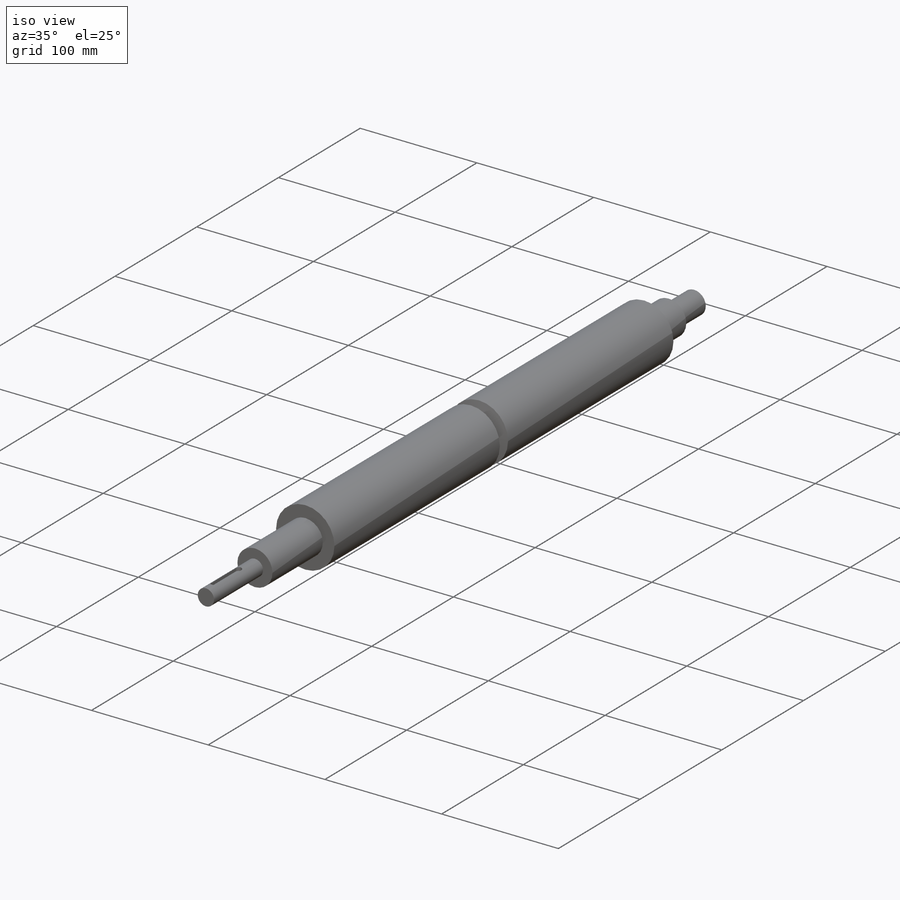
[diagram: iso view]
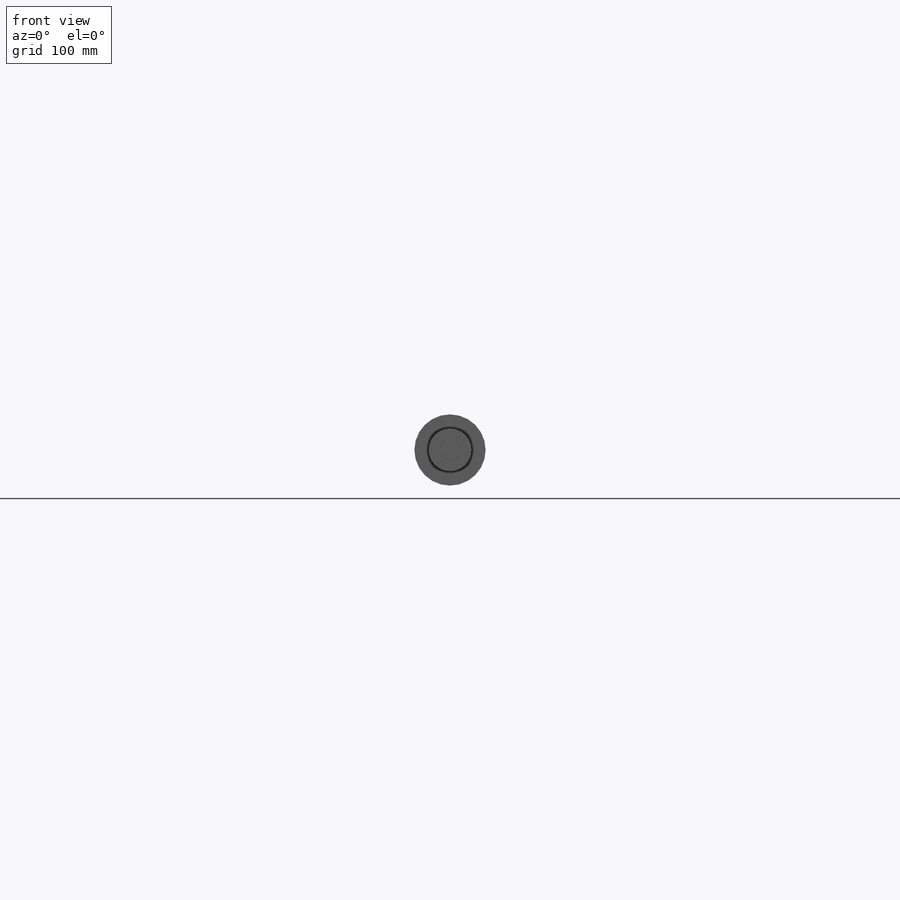
[diagram: front view]
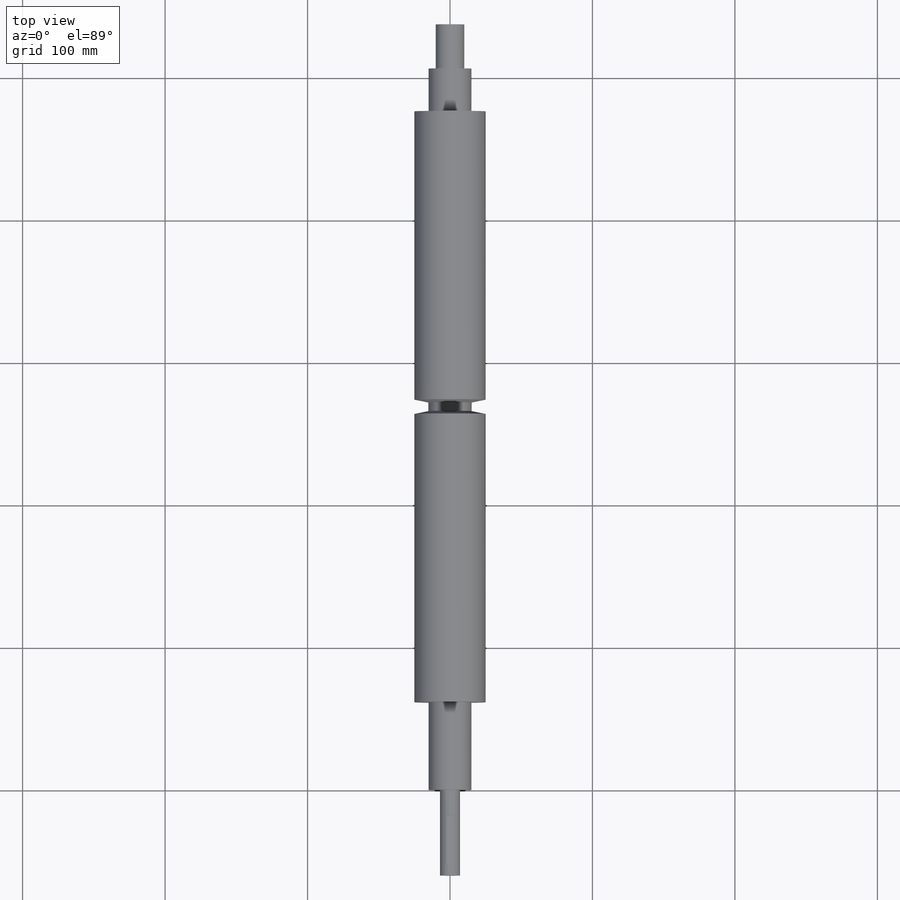
[diagram: top view]
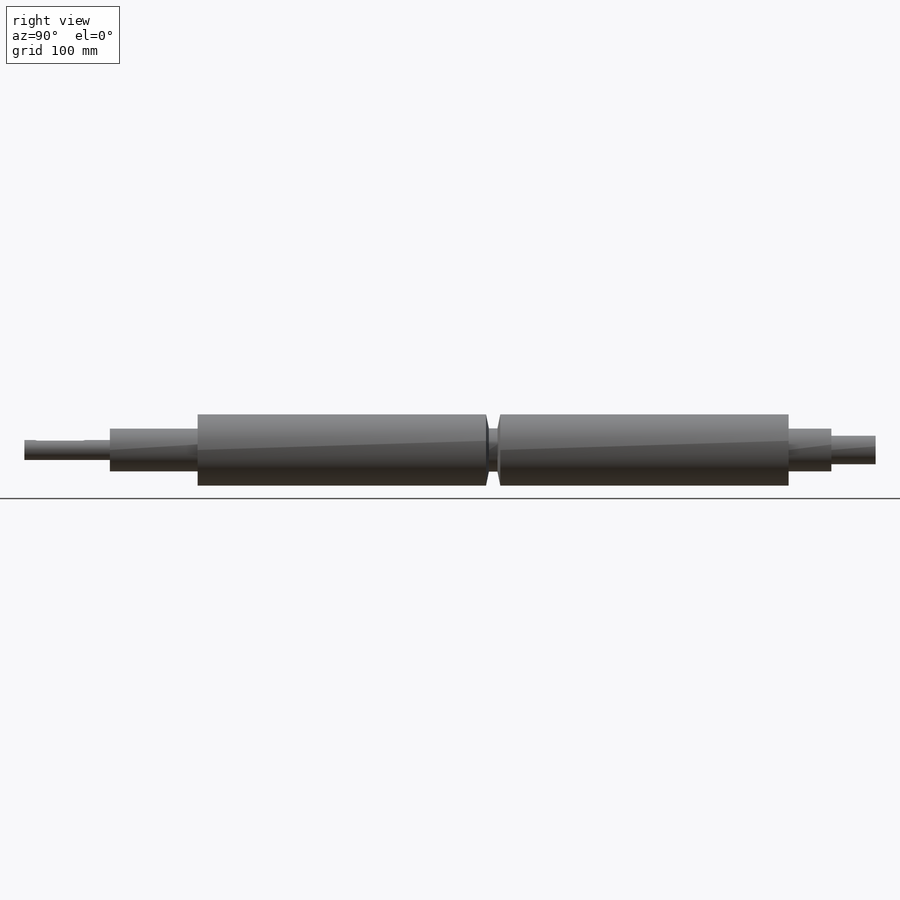
[diagram: right view]
SOLIDWORKS PART (.sldprt)
format: sldprt  version: not decoded by parser v0  size: 220,160 bytes
history: native  units: mm
features: sketch x7, plane x5, extrude x5, material x1, cut_extrude x1, cut_revolve x1 (+10 scaffold rows collapsed)
feature tree (30):
  scaffold x10  (default folders/planes/origin — collapsed)
  material  "Matériau <non spécifié>"
  plane  "Plan de face"
  plane  "Plan de dessus"
  plane  "Plan de droite"
  sketch  "Esquisse1"  dims[D1=14.0mm]
  extrude  "Boss.-Extru.1"  Depth=60mm
  sketch  "Esquisse2"  dims[D1=30.0mm]
  extrude  "Boss.-Extru.2"  Depth=61.6mm
  sketch  "Esquisse3"  dims[D1=~29.665338mm]
  extrude  "Boss.-Extru.3"  Depth=414.8mm
  sketch  "Esquisse4"  dims[D1=30.0mm]
  extrude  "Boss.-Extru.4"  Depth=30mm
  sketch  "Esquisse5"  dims[D1=~8.659879mm]
  extrude  "Boss.-Extru.5"  Depth=31mm
  plane  "Plan1"
  sketch  "Esquisse7"  dims[D1=10.0mm D2=30.0mm]
  cut_extrude  "Enlèv. mat.-Extru.1"  Depth=2.96mm
  plane  "Plan2"  Offset=0mm
  sketch  "Esquisse8"  dims[D1=10.0mm D2=6.0mm D3=10.0mm D4=10.0mm D5=202.4mm]
  cut_revolve  "Enlèvement de matière-Révolution1"  Angle=360deg
decode coverage: 14 of 14 modeling features carry decoded parameters
note: ~ marks probable driven/reference dimensions
note: suppression state not decoded; provenance and decode notes live in map.json
